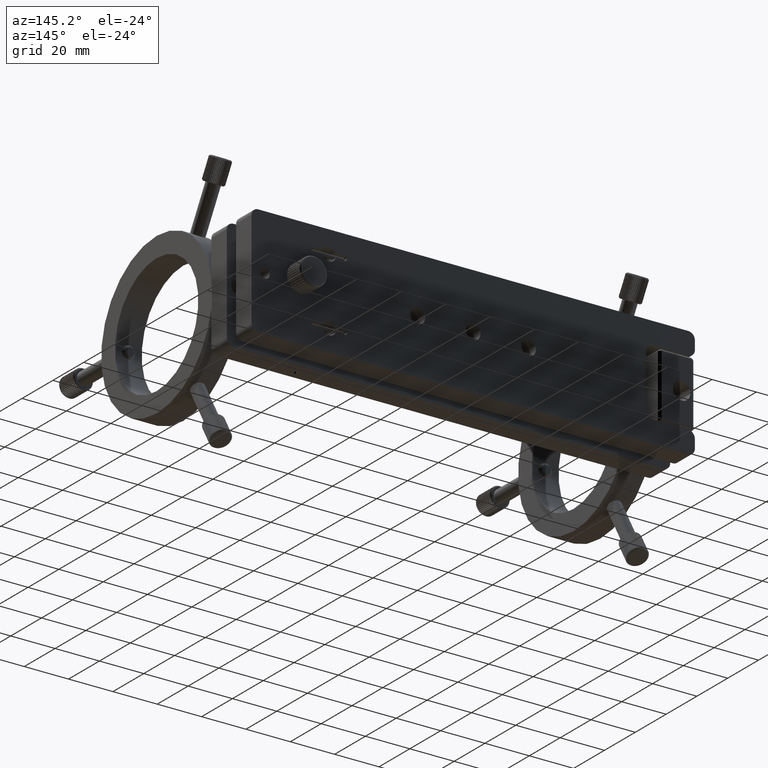
[diagram: clean part render]
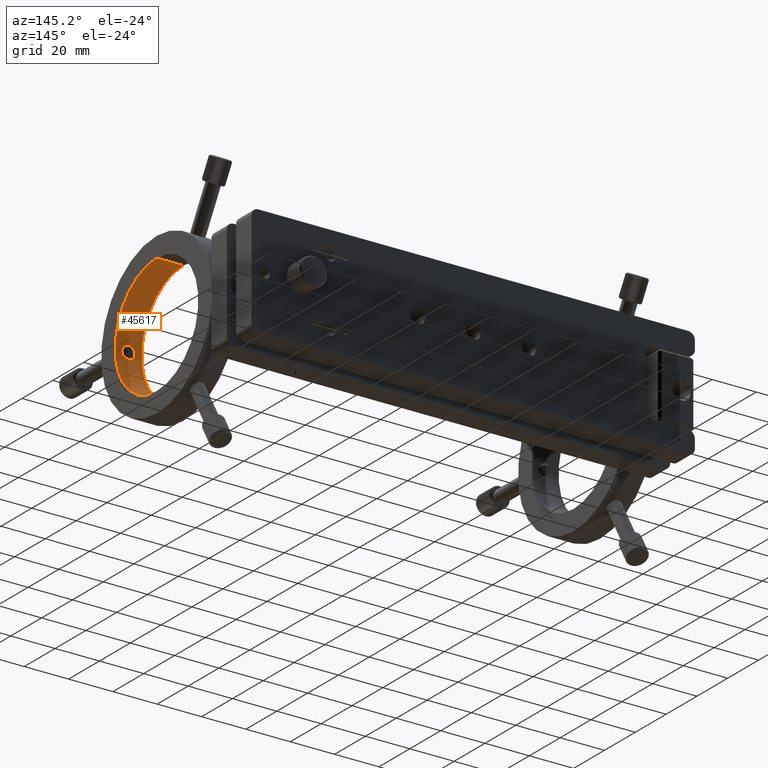
[diagram: same view with one face highlighted and labeled with its STEP entity id]
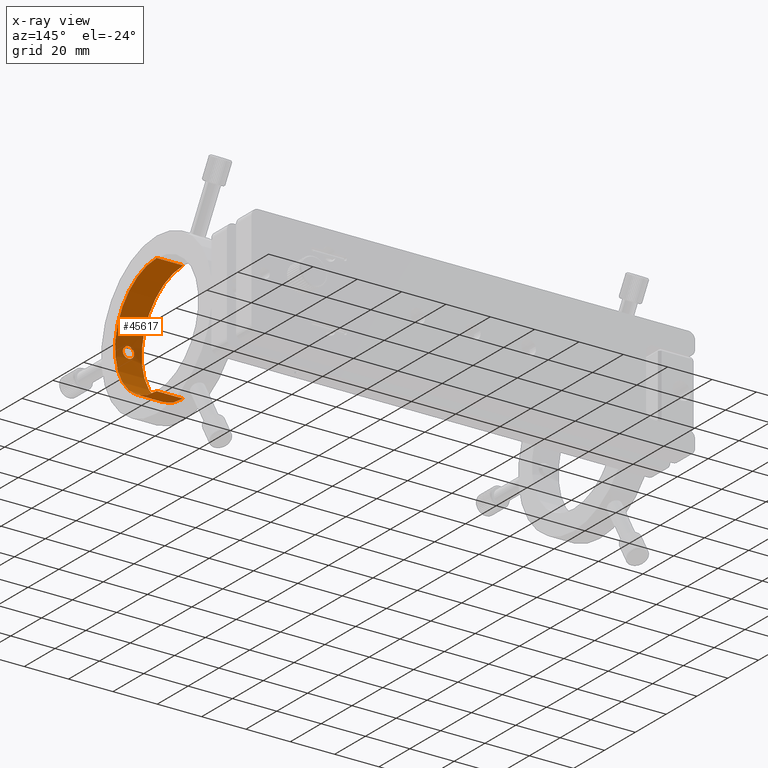
[diagram: x-ray of the same camera — body ghosted, the highlighted face saturated]
A machine part, auxiliary view. The second image highlights one B-rep face of the part: STEP entity #45617.
The next image is the same camera in x-ray: the body ghosted, the highlighted face saturated — about 0% of this face is hidden behind the body in this view.
In plain terms, the highlighted cylindrical surface (partial cylindrical patch) has radius 27 mm, axis along (1, -0, 0).
Its self-contained STEP definition (entity closure, byte-faithful):
#445 = DIRECTION ( 'NONE',  ( 1.000000000000000000, -2.025454320056202900E-032, 1.054711873393898300E-015 ) ) ;
#1098 = ORIENTED_EDGE ( 'NONE', *, *, #26007, .F. ) ;
#1264 = FACE_BOUND ( 'NONE', #45681, .T. ) ;
#1830 = CARTESIAN_POINT ( 'NONE',  ( 88.84245907131486300, -79.83981725636084500, -1.988085293429133500 ) ) ;
#2145 = CARTESIAN_POINT ( 'NONE',  ( 91.47455315897383300, -79.81935516034090500, -2.247154311177558900 ) ) ;
#2311 = CARTESIAN_POINT ( 'NONE',  ( 88.37933348000606800, -79.87019129908972600, -1.525102366022473600 ) ) ;
#2341 = ORIENTED_EDGE ( 'NONE', *, *, #18410, .T. ) ;
#2529 = CARTESIAN_POINT ( 'NONE',  ( 89.71793813569671300, -79.80432605779597600, 2.419781921141392000 ) ) ;
#2851 = CARTESIAN_POINT ( 'NONE',  ( 90.03750209934956700, -79.79851178780576500, 2.483549494111030800 ) ) ;
#3035 = CARTESIAN_POINT ( 'NONE',  ( 92.01812616123605400, -79.84738145450259600, 1.884185036259009800 ) ) ;
#4979 = CARTESIAN_POINT ( 'NONE',  ( 96.36693914623082000, -52.91295791704509100, -26.99999999999999300 ) ) ;
#5473 = CARTESIAN_POINT ( 'NONE',  ( 92.73902279770094000, -79.90134189091962500, -0.8062705001877466000 ) ) ;
#5631 = CARTESIAN_POINT ( 'NONE',  ( 92.01908162428735200, -79.84744030048375400, -1.883347136936305300 ) ) ;
#5787 = CARTESIAN_POINT ( 'NONE',  ( 90.69328449286176400, -79.79846446790008900, -2.484064555940539900 ) ) ;
#5901 = CARTESIAN_POINT ( 'NONE',  ( 84.36693914623072000, -52.91295791704509100, 27.00000000000002500 ) ) ;
#6302 = CARTESIAN_POINT ( 'NONE',  ( 84.36693914623072000, -52.91295791704509100, 26.99999999999999300 ) ) ;
#6658 = CARTESIAN_POINT ( 'NONE',  ( 88.11931189010650200, -79.89068907786135300, 1.106652751714629400 ) ) ;
#6801 = CARTESIAN_POINT ( 'NONE',  ( 87.86693914623076300, -79.91295791704509100, -2.942941366510089000E-015 ) ) ;
#7348 = CARTESIAN_POINT ( 'NONE',  ( 84.36693914623074900, -52.91295791704509100, -6.328271240363397800E-015 ) ) ;
#7770 = EDGE_CURVE ( 'NONE', #19905, #38405, #30419, .T. ) ;
#7780 = ORIENTED_EDGE ( 'NONE', *, *, #23863, .F. ) ;
#8807 = LINE ( 'NONE', #11520, #39962 ) ;
#9231 = CARTESIAN_POINT ( 'NONE',  ( 89.56235007148794100, -79.80857970381158900, -2.372653232690422200 ) ) ;
#9393 = CARTESIAN_POINT ( 'NONE',  ( 87.99454925665112600, -79.90136891046893200, -0.8053750276439477500 ) ) ;
#9400 = AXIS2_PLACEMENT_3D ( 'NONE', #7348, #19255, #45305 ) ;
#9561 = CARTESIAN_POINT ( 'NONE',  ( 89.25955489662585800, -79.81934020069419900, -2.247342222608485600 ) ) ;
#10260 = CARTESIAN_POINT ( 'NONE',  ( 90.69288779325123100, -79.79846912838888800, 2.484008292324454200 ) ) ;
#10304 = CARTESIAN_POINT ( 'NONE',  ( 96.36693914623076300, -52.91295791704509100, 27.00000000000000700 ) ) ;
#10583 = CARTESIAN_POINT ( 'NONE',  ( 90.19989135747604800, -79.79698004540996700, 2.499870840306953800 ) ) ;
#11520 = CARTESIAN_POINT ( 'NONE',  ( 84.36693914623077700, -52.91295791704509100, -27.00000000000003900 ) ) ;
#12985 = CARTESIAN_POINT ( 'NONE',  ( 89.11326850066659200, -79.82584338977039800, -2.169062595965237400 ) ) ;
#13287 = CARTESIAN_POINT ( 'NONE',  ( 92.35521171419537700, -79.87023977155657000, -1.524290168801340800 ) ) ;
#13533 = AXIS2_PLACEMENT_3D ( 'NONE', #33840, #445, #30102 ) ;
#13826 = CARTESIAN_POINT ( 'NONE',  ( 88.37941972157237600, -79.87018223620484000, 1.525384116141207600 ) ) ;
#14056 = EDGE_CURVE ( 'NONE', #34480, #17394, #34719, .T. ) ;
#14164 = CARTESIAN_POINT ( 'NONE',  ( 88.71310131734111300, -79.84754493687918900, 1.881854038187122500 ) ) ;
#14318 = CARTESIAN_POINT ( 'NONE',  ( 88.48280763818436900, -79.86266570589434400, 1.651242757953659500 ) ) ;
#14578 = CARTESIAN_POINT ( 'NONE',  ( 87.86693914623076300, -79.91295791704509100, -2.942941366510089000E-015 ) ) ;
#14805 = ORIENTED_EDGE ( 'NONE', *, *, #7770, .F. ) ;
#16734 = CARTESIAN_POINT ( 'NONE',  ( 88.19829937684323800, -79.88414353761027100, -1.254398286784115900 ) ) ;
#16961 = ORIENTED_EDGE ( 'NONE', *, *, #14056, .T. ) ;
#17069 = CARTESIAN_POINT ( 'NONE',  ( 91.17372209450830700, -79.80865092797978400, -2.371837383514572700 ) ) ;
#17374 = DIRECTION ( 'NONE',  ( -1.000000000000000000, 2.025454320056202900E-032, -1.054711873393898300E-015 ) ) ;
#17394 = VERTEX_POINT ( 'NONE', #10304 ) ;
#17598 = CARTESIAN_POINT ( 'NONE',  ( 92.86693914623079100, -79.91295791704510500, 0.3304749856692299500 ) ) ;
#17683 = FACE_OUTER_BOUND ( 'NONE', #33684, .T. ) ;
#17905 = CARTESIAN_POINT ( 'NONE',  ( 91.61774529808948800, -79.82570783546708500, 2.170746951307447800 ) ) ;
#18065 = CARTESIAN_POINT ( 'NONE',  ( 87.99476282684806000, -79.90135117772371100, 0.8057841554101964300 ) ) ;
#18410 = EDGE_CURVE ( 'NONE', #36675, #34480, #36309, .T. ) ;
#18961 = CIRCLE ( 'NONE', #39936, 27.00000000000003200 ) ;
#19255 = DIRECTION ( 'NONE',  ( -1.000000000000000000, 2.025454320056202900E-032, -1.054711873393898300E-015 ) ) ;
#19511 = CARTESIAN_POINT ( 'NONE',  ( 84.36693914623077700, -52.91295791704509100, -27.00000000000000700 ) ) ;
#19905 = VERTEX_POINT ( 'NONE', #37365 ) ;
#20344 = CARTESIAN_POINT ( 'NONE',  ( 87.94726181266034400, -79.90562032653271300, -0.6495151699034046300 ) ) ;
#20512 = CARTESIAN_POINT ( 'NONE',  ( 89.71823882952053000, -79.80431537748459900, -2.419901344884633600 ) ) ;
#20789 = B_SPLINE_CURVE_WITH_KNOTS ( 'NONE', 3,
 ( #6801, #21731, #33119, #29519, #18065, #6658, #32791, #13826, #14318, #14164, #43959, #47925, #29035, #40477, #2529, #2851, #10583, #25031, #10260, #40664, #36873, #36392, #17905, #33272, #3035, #44457, #21897, #44608, #36555, #48238, #17598, #25703 ),
 .UNSPECIFIED., .F., .F.,
 ( 4, 2, 2, 2, 2, 2, 2, 2, 2, 2, 2, 2, 2, 2, 2, 4 ),
 ( 0.007820325457270243700, 0.008308981779999662100, 0.008797638102729080400, 0.009286294425458498800, 0.009774950748187917100, 0.01026360707091733500, 0.01075226339364675400, 0.01124091971637617200, 0.01172957603910559100, 0.01221823236183500900, 0.01270688868456442700, 0.01319554500729384600, 0.01368420133002326400, 0.01417285765275268200, 0.01466151397548210200, 0.01563882662094095300 ),
 .UNSPECIFIED. ) ;
#20837 = CARTESIAN_POINT ( 'NONE',  ( 91.89325667325022100, -79.83991507542006600, -1.986800874086190000 ) ) ;
#20998 = CARTESIAN_POINT ( 'NONE',  ( 88.12000310164087600, -79.89063045843124700, -1.108215292646241600 ) ) ;
#21731 = CARTESIAN_POINT ( 'NONE',  ( 87.86693914623079100, -79.91295791704510500, 0.1631680134412362400 ) ) ;
#21897 = CARTESIAN_POINT ( 'NONE',  ( 92.35233533155420100, -79.87002540411714300, 1.528129615937304600 ) ) ;
#23863 = EDGE_CURVE ( 'NONE', #24727, #17394, #18961, .T. ) ;
#24476 = DIRECTION ( 'NONE',  ( 1.027984282060329000E-015, 0.0000000000000000000, -1.000000000000000000 ) ) ;
#24650 = CARTESIAN_POINT ( 'NONE',  ( 96.36693914623079100, -52.91295791704509100, 6.328271240363415200E-015 ) ) ;
#24654 = CARTESIAN_POINT ( 'NONE',  ( 92.53666977007712500, -79.88423056330910300, -1.252580274141452700 ) ) ;
#24727 = VERTEX_POINT ( 'NONE', #4979 ) ;
#24827 = CARTESIAN_POINT ( 'NONE',  ( 92.78714182554071500, -79.90566765665410300, -0.6474378478954518900 ) ) ;
#25031 = CARTESIAN_POINT ( 'NONE',  ( 90.53009835593236700, -79.79695616437419400, 2.500127647588093400 ) ) ;
#25703 = CARTESIAN_POINT ( 'NONE',  ( 92.86693914623074900, -79.91295791704509100, 2.530517253558671100E-015 ) ) ;
#26007 = EDGE_CURVE ( 'NONE', #38405, #19905, #20789, .T. ) ;
#27707 = VECTOR ( 'NONE', #47479, 1000.000000000000000 ) ;
#28143 = CARTESIAN_POINT ( 'NONE',  ( 92.61348095386247800, -79.89059752404472200, -1.109009862718919800 ) ) ;
#28327 = CARTESIAN_POINT ( 'NONE',  ( 90.53099944920265300, -79.79697353792845100, -2.499940819222325100 ) ) ;
#28484 = CARTESIAN_POINT ( 'NONE',  ( 87.86693914623076300, -79.91295791704509100, -2.942941366510089000E-015 ) ) ;
#29035 = CARTESIAN_POINT ( 'NONE',  ( 89.25662491160920800, -79.81946191963402300, 2.245889149345382300 ) ) ;
#29519 = CARTESIAN_POINT ( 'NONE',  ( 87.94677013236365300, -79.90566437945729200, 0.6479300258273891200 ) ) ;
#30102 = DIRECTION ( 'NONE',  ( -1.027984282060329000E-015, 0.0000000000000000000, 1.000000000000000000 ) ) ;
#30419 = B_SPLINE_CURVE_WITH_KNOTS ( 'NONE', 3,
 ( #43118, #35864, #46715, #24827, #5473, #28143, #24654, #13287, #39618, #5631, #20837, #35535, #2145, #17069, #31947, #5787, #28327, #32098, #31772, #20512, #9231, #9561, #12985, #1830, #43430, #39281, #2311, #16734, #20998, #9393, #20344, #32252, #47225, #28484 ),
 .UNSPECIFIED., .F., .F.,
 ( 4, 2, 2, 2, 2, 2, 2, 2, 2, 2, 2, 2, 2, 2, 2, 2, 4 ),
 ( 1.032588026442286300E-019, 0.0004887703410793904500, 0.0009775406821587806800, 0.001466311023238171200, 0.001955081364317561400, 0.002443851705396951300, 0.002932622046476340800, 0.003421392387555731100, 0.003910162728635121000, 0.004398933069714510900, 0.004887703410793901700, 0.005376473751873291600, 0.005865244092952681500, 0.006354014434032073100, 0.006842784775111463100, 0.007331555116190853800, 0.007820325457270243700 ),
 .UNSPECIFIED. ) ;
#31772 = CARTESIAN_POINT ( 'NONE',  ( 90.03895376669704800, -79.79849061352378200, -2.483779420698734700 ) ) ;
#31947 = CARTESIAN_POINT ( 'NONE',  ( 91.01606838136847000, -79.80431954070984100, -2.419857276666807200 ) ) ;
#32098 = CARTESIAN_POINT ( 'NONE',  ( 90.20468745651943700, -79.79696256166049300, -2.500058853669453900 ) ) ;
#32252 = CARTESIAN_POINT ( 'NONE',  ( 87.88329674379744500, -79.91142945039555900, -0.3289814149225379600 ) ) ;
#32791 = CARTESIAN_POINT ( 'NONE',  ( 88.19677206426766200, -79.88426368250144100, 1.251960463247124000 ) ) ;
#33119 = CARTESIAN_POINT ( 'NONE',  ( 87.88275945306242000, -79.91147885538940400, 0.3253961064630554500 ) ) ;
#33272 = CARTESIAN_POINT ( 'NONE',  ( 91.88945713789388500, -79.83970397327947000, 1.989622406689328900 ) ) ;
#33684 = EDGE_LOOP ( 'NONE', ( #38829, #2341, #16961, #7780 ) ) ;
#33840 = CARTESIAN_POINT ( 'NONE',  ( 84.36693914623074900, -52.91295791704509100, -6.328271240363397800E-015 ) ) ;
#34480 = VERTEX_POINT ( 'NONE', #6302 ) ;
#34719 = LINE ( 'NONE', #5901, #27707 ) ;
#35535 = CARTESIAN_POINT ( 'NONE',  ( 91.61995723515215700, -79.82580672475843600, -2.169554925645424100 ) ) ;
#35864 = CARTESIAN_POINT ( 'NONE',  ( 92.86693914623077700, -79.91295791704507700, -0.1652760477563632000 ) ) ;
#36309 = CIRCLE ( 'NONE', #9400, 27.00000000000003200 ) ;
#36392 = CARTESIAN_POINT ( 'NONE',  ( 91.47413671762832600, -79.81933213517379500, 2.247439027844126100 ) ) ;
#36555 = CARTESIAN_POINT ( 'NONE',  ( 92.61302835211934300, -79.89056052100065100, 1.109767116009480900 ) ) ;
#36675 = VERTEX_POINT ( 'NONE', #19511 ) ;
#36873 = CARTESIAN_POINT ( 'NONE',  ( 91.17120534700569600, -79.80856966367731800, 2.372767271410481700 ) ) ;
#37365 = CARTESIAN_POINT ( 'NONE',  ( 92.86693914623074900, -79.91295791704509100, 2.530517253558671100E-015 ) ) ;
#37995 = EDGE_CURVE ( 'NONE', #36675, #24727, #8807, .T. ) ;
#38405 = VERTEX_POINT ( 'NONE', #14578 ) ;
#38829 = ORIENTED_EDGE ( 'NONE', *, *, #37995, .F. ) ;
#39281 = CARTESIAN_POINT ( 'NONE',  ( 88.48273225403258400, -79.86266416149689500, -1.651366228525216400 ) ) ;
#39618 = CARTESIAN_POINT ( 'NONE',  ( 92.24965222621295900, -79.86256598539191000, -1.652864986763603200 ) ) ;
#39936 = AXIS2_PLACEMENT_3D ( 'NONE', #24650, #17374, #24476 ) ;
#39962 = VECTOR ( 'NONE', #46050, 1000.000000000000000 ) ;
#40477 = CARTESIAN_POINT ( 'NONE',  ( 89.55907574759608300, -79.80867882600352900, 2.371533786370545900 ) ) ;
#40664 = CARTESIAN_POINT ( 'NONE',  ( 91.01249855539543900, -79.80424307647098200, 2.420700883229910600 ) ) ;
#43052 = CYLINDRICAL_SURFACE ( 'NONE', #13533, 27.00000000000003200 ) ;
#43118 = CARTESIAN_POINT ( 'NONE',  ( 92.86693914623074900, -79.91295791704509100, 2.530517253558671100E-015 ) ) ;
#43430 = CARTESIAN_POINT ( 'NONE',  ( 88.71620687412908500, -79.84734760910596700, -1.884762319010756100 ) ) ;
#43959 = CARTESIAN_POINT ( 'NONE',  ( 88.84157378887684300, -79.83986546026353900, 1.987446267886347200 ) ) ;
#44457 = CARTESIAN_POINT ( 'NONE',  ( 92.24881609520930700, -79.86250733049017500, 1.653817087312771800 ) ) ;
#44608 = CARTESIAN_POINT ( 'NONE',  ( 92.53520255705241500, -79.88411020441628800, 1.255233809731640900 ) ) ;
#45305 = DIRECTION ( 'NONE',  ( 1.027984282060329000E-015, 0.0000000000000000000, -1.000000000000000000 ) ) ;
#45617 = ADVANCED_FACE ( 'NONE', ( #17683, #1264 ), #43052, .F. ) ;
#45681 = EDGE_LOOP ( 'NONE', ( #14805, #1098 ) ) ;
#46050 = DIRECTION ( 'NONE',  ( 1.000000000000000000, -2.025454320056202900E-032, 1.054711873393898300E-015 ) ) ;
#46715 = CARTESIAN_POINT ( 'NONE',  ( 92.85071089691418000, -79.91144158163886900, -0.3277722781650722100 ) ) ;
#47225 = CARTESIAN_POINT ( 'NONE',  ( 87.86693914623076300, -79.91295791704509100, -0.1632060854906457700 ) ) ;
#47479 = DIRECTION ( 'NONE',  ( 1.000000000000000000, -2.025454320056202900E-032, 1.054711873393898300E-015 ) ) ;
#47925 = CARTESIAN_POINT ( 'NONE',  ( 89.11315260022773500, -79.82584685655800200, 2.169032373712470800 ) ) ;
#48238 = CARTESIAN_POINT ( 'NONE',  ( 92.80045114399592900, -79.90659573760989100, 0.6588007643241383700 ) ) ;